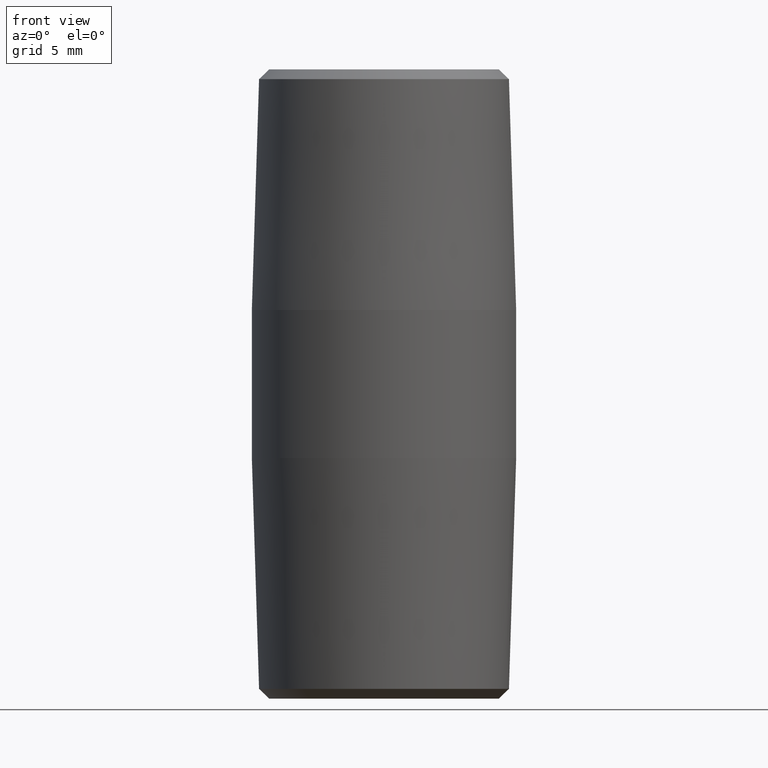
[diagram: clean part render]
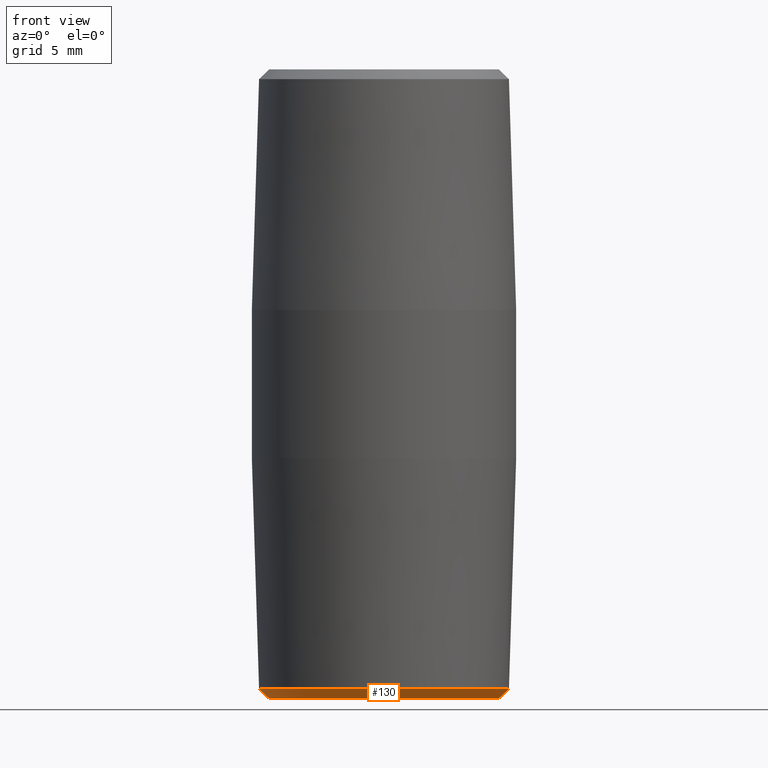
[diagram: same view with one face highlighted and labeled with its STEP entity id]
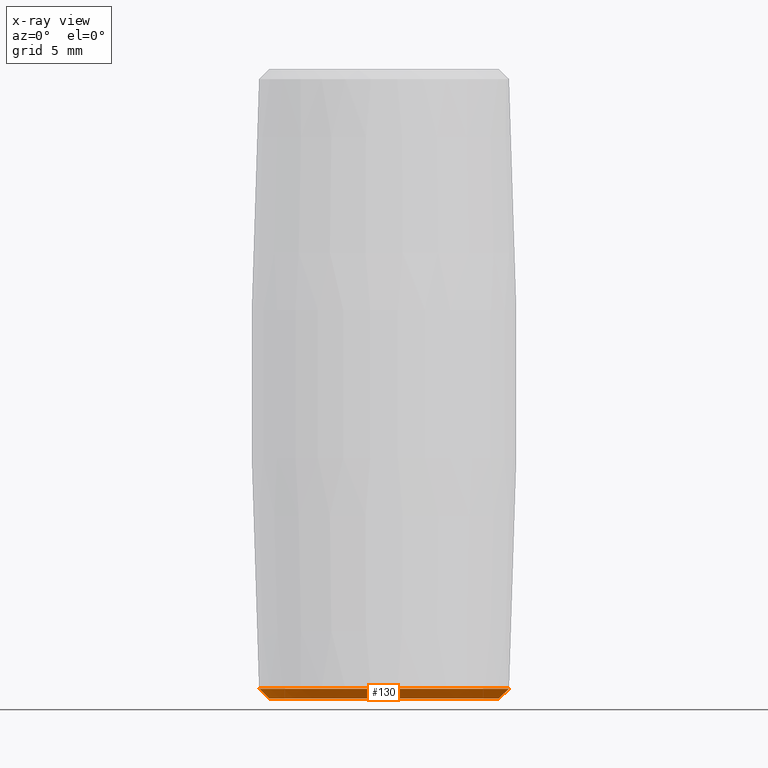
[diagram: x-ray of the same camera — body ghosted, the highlighted face saturated]
A machine part, front view. The second image highlights one B-rep face of the part: STEP entity #130.
The next image is the same camera in x-ray: the body ghosted, the highlighted face saturated — about 0% of this face is hidden behind the body in this view.
In plain terms, the highlighted conical surface has half-angle 45.895 deg.
Its self-contained STEP definition (entity closure, byte-faithful):
#20=CONICAL_SURFACE('',#163,0.380955622668174,0.801018860202792);
#26=FACE_OUTER_BOUND('',#35,.T.);
#35=EDGE_LOOP('',(#99,#100,#101,#102));
#43=LINE('',#235,#49);
#49=VECTOR('',#198,0.380955622668174);
#57=CIRCLE('',#164,0.39706869004);
#58=CIRCLE('',#165,0.364842555296348);
#66=VERTEX_POINT('',#232);
#67=VERTEX_POINT('',#234);
#78=EDGE_CURVE('',#66,#66,#57,.T.);
#79=EDGE_CURVE('',#66,#67,#43,.T.);
#80=EDGE_CURVE('',#67,#67,#58,.T.);
#99=ORIENTED_EDGE('',*,*,#78,.T.);
#100=ORIENTED_EDGE('',*,*,#79,.T.);
#101=ORIENTED_EDGE('',*,*,#80,.T.);
#102=ORIENTED_EDGE('',*,*,#79,.F.);
#130=ADVANCED_FACE('',(#26),#20,.T.);
#163=AXIS2_PLACEMENT_3D('',#231,#194,#195);
#164=AXIS2_PLACEMENT_3D('',#233,#196,#197);
#165=AXIS2_PLACEMENT_3D('',#236,#199,#200);
#194=DIRECTION('center_axis',(0.,7.78384375446333E-16,1.));
#195=DIRECTION('ref_axis',(1.,-3.1910071133827E-17,0.));
#196=DIRECTION('center_axis',(0.,0.,-1.));
#197=DIRECTION('ref_axis',(1.,-6.12303176911189E-17,0.));
#198=DIRECTION('',(0.718065565180803,-4.76712279201996E-16,-0.695975462284105));
#199=DIRECTION('center_axis',(0.,0.,1.));
#200=DIRECTION('ref_axis',(1.,0.,0.));
#231=CARTESIAN_POINT('Origin',(0.,1.21563210181728E-17,-0.984382624572593));
#232=CARTESIAN_POINT('',(-0.39706869004,9.72505681453825E-17,-0.968765249145187));
#233=CARTESIAN_POINT('Origin',(0.,2.43126420363456E-17,-0.968765249145187));
#234=CARTESIAN_POINT('',(-0.364842555296348,-4.467885113607E-17,-1.));
#235=CARTESIAN_POINT('',(-0.380955622668174,-2.2340966355431E-17,-0.984382624572593));
#236=CARTESIAN_POINT('Origin',(0.,0.,-1.));